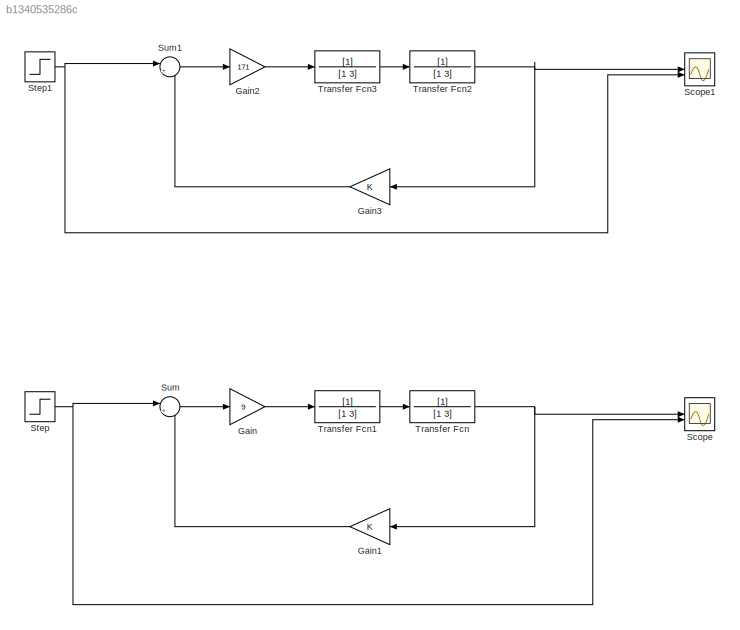
MODEL slx_b1340535286c
KIND model
CONFIG AbsTol = auto
CONFIG EnableMultiTasking = off
CONFIG FixedStep = auto
CONFIG MaxStep = auto
CONFIG MinStep = auto
CONFIG RelTol = 1e-3
CONFIG SampleTimeConstraint = Unconstrained
CONFIG SolverName = VariableStepAuto
CONFIG StartTime = 0.0
CONFIG StopTime = 10.0
BLOCK [Gain] Gain
  Gain = 9
BLOCK [Gain] Gain1
BLOCK [Gain] Gain2
  Gain = 171
BLOCK [Gain] Gain3
BLOCK [Scope] Scope
  Floating = off
  NumInputPorts = 2
  ScopeSpecificationString = Simulink.scopes.TimeScopeBlockCfg('CurrentConfiguration', extmgr.ConfigurationSet(extmgr.Configuration('Core','General UI',true),extmgr.Configuration('Core','Source UI',true),extmgr.Configuration('Sources','WiredSimulink',true,'DataLoggingVariableName','ScopeData1'),extmgr.Configuration('Visuals','Time Domain',true,'SerializedDisplays',{struct('MinYLimReal','-0.125','MaxYLimReal','1.125','YLabelRe...<+1755ch>
BLOCK [Scope] Scope1
  Floating = off
  NumInputPorts = 2
  ScopeSpecificationString = Simulink.scopes.TimeScopeBlockCfg('CurrentConfiguration', extmgr.ConfigurationSet(extmgr.Configuration('Core','General UI',true),extmgr.Configuration('Core','Source UI',true),extmgr.Configuration('Sources','WiredSimulink',true),extmgr.Configuration('Visuals','Time Domain',true,'SerializedDisplays',{struct('MinYLimReal','-0.17492','MaxYLimReal','1.57425','YLabelReal','','MinYLimMag','0.00000','MaxY...<+1728ch>
BLOCK [Step] Step
  SampleTime = 0
BLOCK [Step] Step1
  SampleTime = 0
BLOCK [Sum] Sum
  Inputs = |+-
BLOCK [Sum] Sum1
  Inputs = |+-
BLOCK [TransferFcn] Transfer Fcn
  Denominator = [1 3]
BLOCK [TransferFcn] Transfer Fcn1
  Denominator = [1 3]
BLOCK [TransferFcn] Transfer Fcn2
  Denominator = [1 3]
BLOCK [TransferFcn] Transfer Fcn3
  Denominator = [1 3]
LINE Gain1:1 -> Sum:2
LINE Gain2:1 -> Transfer Fcn3:1
LINE Gain3:1 -> Sum1:2
LINE Gain:1 -> Transfer Fcn1:1
NET Step1:1 -> Scope1:2, Sum1:1
NET Step:1 -> Scope:2, Sum:1
LINE Sum1:1 -> Gain2:1
LINE Sum:1 -> Gain:1
LINE Transfer Fcn1:1 -> Transfer Fcn:1
NET Transfer Fcn2:1 -> Gain3:1, Scope1:1
LINE Transfer Fcn3:1 -> Transfer Fcn2:1
NET Transfer Fcn:1 -> Gain1:1, Scope:1
note: NET lines group one-source signal fan-out (src -> all destinations, sorted); 1:1 wires keep LINE
